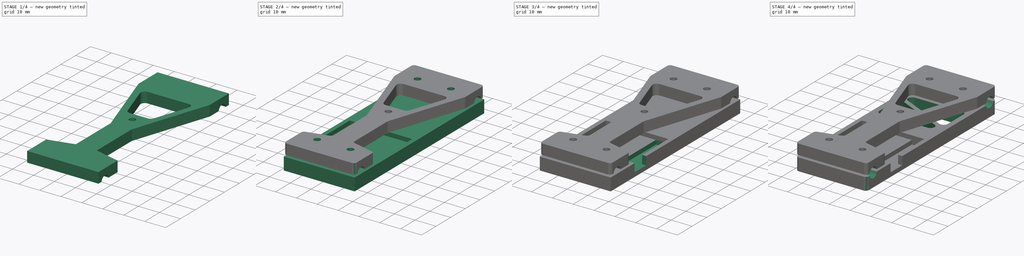
[diagram: build sequence overview — one tinted view per stage of 4, left to right]
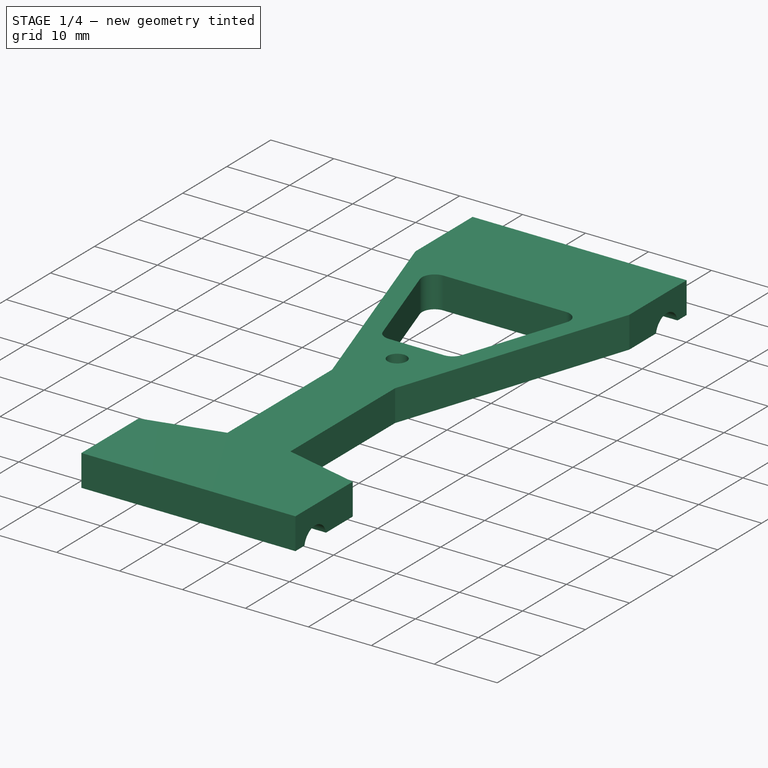
[diagram: stage 1 of 4 — iso view after this stage's code; geometry added in this stage tinted green]
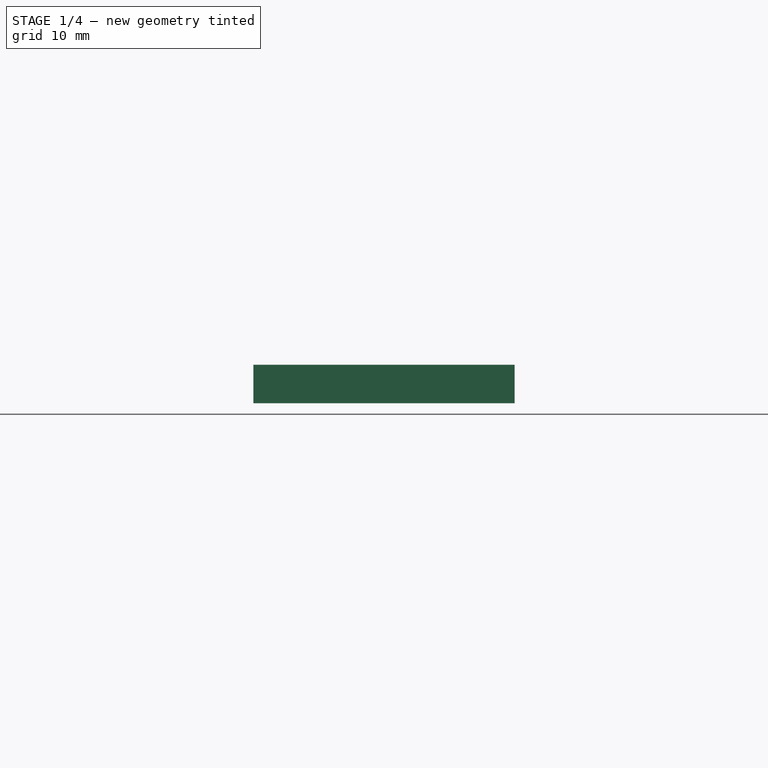
[diagram: stage 1 of 4 — front view after this stage's code; geometry added in this stage tinted green]
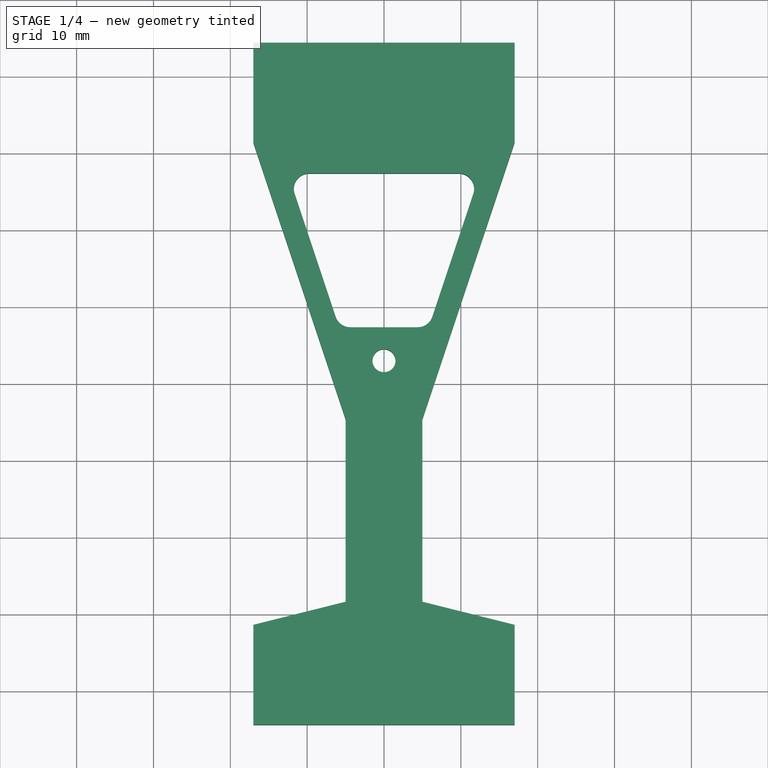
[diagram: stage 1 of 4 — top view after this stage's code; geometry added in this stage tinted green]
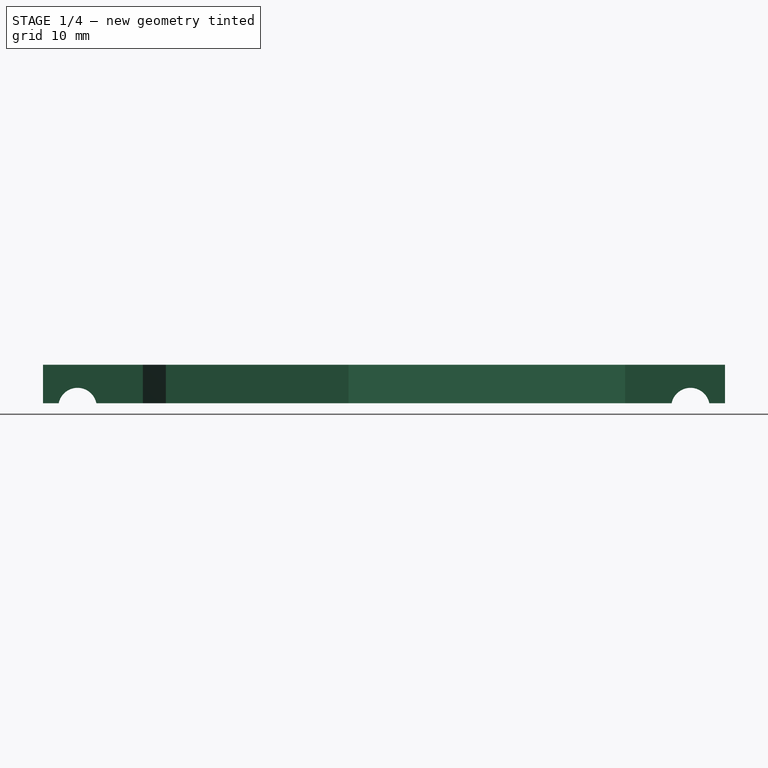
[diagram: stage 1 of 4 — right view after this stage's code; geometry added in this stage tinted green]
FCSTD DOCUMENT  (FreeCAD 0.19R24291 (Git))
Label: rfm95w_mount
License: All rights reserved
LicenseURL: http://en.wikipedia.org/wiki/All_rights_reserved
objects: Sketcher::SketchObject×10, PartDesign::Pocket×7, PartDesign::Plane×4, PartDesign::Pad×2, PartDesign::Fillet×2, PartDesign::Body×2, App::Part×2
note: 38 computed .brp shape members not serialized (recipe doc carries the construction recipe); baked Part::Feature solids carry a one-line shape summary decoded from their .brp

FEATURE [Sketcher::SketchObject] Sketch
  FullyConstrained = true
  MapMode = 5
  Support = -> [XY_Plane001]
  expr: Constraints[14] = 56.4mm * sqrt(2) / 2 + 2.5mm + 2mm
  expr: Constraints[13] = 56.4mm * sqrt(2) / 2 + 2.5mm + 2mm
  sketch-geometry (5):
    g0: LineSegment StartX=17 StartY=44.3808 StartZ=0 EndX=17 EndY=-44.3808 EndZ=0
    g1: LineSegment StartX=17 StartY=-44.3808 StartZ=0 EndX=-17 EndY=-44.3808 EndZ=0
    g2: LineSegment StartX=-17 StartY=44.3808 StartZ=0 EndX=0 EndY=44.3808 EndZ=0
    g3: LineSegment StartX=0 StartY=44.3808 StartZ=0 EndX=17 EndY=44.3808 EndZ=0
    g4: LineSegment StartX=-17 StartY=44.3808 StartZ=0 EndX=-17 EndY=-44.3808 EndZ=0
  constraints (15):
    c: Coincident(g0,g1)
    c: Horizontal(g1)
    c: Vertical(g0)
    c: Coincident(g3,g0)
    c: Horizontal(g3)
    c: Horizontal(g2)
    c: Equal(g2,g3)
    c: Coincident(g4,g2)
    c: Coincident(g4,g1)
    c: Vertical(g4)
    c: DistanceX(g1,g1) = 34
    c: Coincident(g2,g3)
    c: PointOnObject(g2,g-2)
    c: DistanceY(g1,g-1) = 44.3808
    c: DistanceY(g-1,g2) = 44.3808
FEATURE [PartDesign::Pad] Pad
  Direction = (1,1,1)
  Length = 6
  Length2 = 100
  Profile = -> Sketch
  Type = 0
FEATURE [PartDesign::Body] Body
  Group = -> [Sketch,Pad,DatumPlane,Sketch001,Pocket,Sketch002,Pocket001,Sketch003,Pocket002,DatumPlane001,Sketch004,Pocket003,Fillet,Sketch005,Pocket004]
  Origin = -> Origin001
  Tip = -> Pocket004
FEATURE [App::Part] Part  label="base"
  Group = -> [Body]
  Origin = -> Origin
FEATURE [PartDesign::Plane] DatumPlane002
  AttachmentOffset = pos=(0,0,7) rot=(0,0,1;0rad)
  Length = 63.3238
  MapMode = 5
  Placement = pos=(0,0,7) rot=(0,0,1;0rad)
  ResizeMode = 0
  Support = -> [XY_Plane003]
  Width = 102.085
  expr: .AttachmentOffset.Base.z = Pad.Length + 1mm
FEATURE [Sketcher::SketchObject] Sketch006
  FullyConstrained = true
  MapMode = 5
  Placement = pos=(0,0,7) rot=(0,0,1;0rad)
  Support = -> [DatumPlane002]
  expr: Constraints[2] = 56.4mm * sqrt(2) / 2 + 2.5mm + 2mm
  expr: Constraints[1] = 56.4mm * sqrt(2) / 2 + 2.5mm + 2mm
  sketch-geometry (24):
    g0: LineSegment StartX=-17 StartY=44.3808 StartZ=0 EndX=17 EndY=44.3808 EndZ=0
    g1: LineSegment StartX=-17 StartY=-44.3808 StartZ=0 EndX=0 EndY=-44.3808 EndZ=0
    g2: LineSegment StartX=0 StartY=-44.3808 StartZ=0 EndX=17 EndY=-44.3808 EndZ=0
    g3: LineSegment StartX=-5 StartY=-4.62082 StartZ=0 EndX=-5 EndY=-28.3808 EndZ=0
    g4: LineSegment StartX=-5 StartY=-28.3808 StartZ=0 EndX=-17 EndY=-31.3808 EndZ=0
    g5: LineSegment StartX=-17 StartY=-31.3808 StartZ=0 EndX=-17 EndY=-44.3808 EndZ=0
    g6: LineSegment StartX=17 StartY=44.3808 StartZ=0 EndX=17 EndY=31.3808 EndZ=0
    g7: LineSegment StartX=5 StartY=-4.62082 StartZ=0 EndX=5 EndY=-28.3808 EndZ=0
    g8: LineSegment StartX=5 StartY=-28.3808 StartZ=0 EndX=17 EndY=-31.3808 EndZ=0
    g9: LineSegment StartX=17 StartY=-31.3808 StartZ=0 EndX=17 EndY=-44.3808 EndZ=0
    g10: LineSegment StartX=-17 StartY=44.3808 StartZ=0 EndX=-17 EndY=31.3808 EndZ=0
    g11: LineSegment StartX=-17 StartY=31.3808 StartZ=0 EndX=-5 EndY=-4.62082 EndZ=0
    g12: LineSegment StartX=5 StartY=-4.62082 StartZ=0 EndX=17 EndY=31.3808 EndZ=0
    g13: Circle CenterX=0 CenterY=3 CenterZ=0 NormalX=0 NormalY=0 NormalZ=1 AngleXU=0 Radius=1.5
    g14: LineSegment StartX=-9.72965 StartY=27.3808 StartZ=0 EndX=9.72965 EndY=27.3808 EndZ=0
    g15: LineSegment StartX=-11.627 StartY=24.7484 StartZ=0 EndX=-6.28366 EndY=8.71757 EndZ=0
    g16: LineSegment StartX=6.28366 StartY=8.71757 StartZ=0 EndX=11.627 EndY=24.7484 EndZ=0
    g17: LineSegment StartX=-4.38629 StartY=7.35 StartZ=0 EndX=4.38629 EndY=7.35 EndZ=0
    g18: ArcOfCircle CenterX=-4.38629 CenterY=9.35 CenterZ=0 NormalX=0 NormalY=0 NormalZ=1 AngleXU=0 Radius=2 StartAngle=3.46333 EndAngle=4.71239
    g19: ArcOfCircle CenterX=4.38629 CenterY=9.35 CenterZ=0 NormalX=0 NormalY=0 NormalZ=1 AngleXU=0 Radius=2 StartAngle=4.71239 EndAngle=5.96145
    g20: ArcOfCircle CenterX=-9.72965 CenterY=25.3808 CenterZ=0 NormalX=0 NormalY=0 NormalZ=1 AngleXU=0 Radius=2 StartAngle=1.5708 EndAngle=3.46333
    g21: ArcOfCircle CenterX=9.72965 CenterY=25.3808 CenterZ=0 NormalX=0 NormalY=0 NormalZ=1 AngleXU=0 Radius=2 StartAngle=5.96145 EndAngle=7.85398
    g22: LineSegment StartX=-11.627 StartY=24.7484 StartZ=0 EndX=-14.4731 EndY=23.7997 EndZ=0
    g23: LineSegment StartX=11.627 StartY=24.7484 StartZ=0 EndX=14.4731 EndY=23.7997 EndZ=0
  constraints (68):
    c: Horizontal(g0)
    c: DistanceY(g-1,g0) = 44.3808
    c: DistanceY(g1,g-1) = 44.3808
    c: DistanceX(g0,g0) = 34
    c: PointOnObject(g1,g-2)
    c: Horizontal(g1)
    c: Coincident(g2,g1)
    c: Horizontal(g2)
    c: Equal(g2,g1)
    c: Vertical(g2,g0)
    c: Vertical(g0,g1)
    c: Vertical(g3)
    c: Coincident(g4,g3)
    c: Coincident(g5,g4)
    c: Coincident(g5,g1)
    c: Vertical(g5)
    c: Coincident(g6,g0)
    c: Vertical(g6)
    c: Vertical(g7)
    c: Coincident(g8,g7)
    c: Coincident(g9,g8)
    c: Coincident(g9,g2)
    c: Vertical(g9)
    c: Horizontal(g7,g3)
    c: Equal(g4,g8)
    c: Horizontal(g3,g7)
    c: DistanceX(g3,g7) = 10
    c: DistanceY(g8,g7) = 26.76
    c: Equal(g6,g9)
    c: Coincident(g10,g0)
    c: Vertical(g10)
    c: Horizontal(g10,g6)
    c: Coincident(g11,g10)
    c: Coincident(g11,g3)
    c: Coincident(g12,g7)
    c: Coincident(g12,g6)
    c: PointOnObject(g13,g-2)
    c: Radius(g13) = 1.5
    c: DistanceY(g-1,g13) = 3
    c: DistanceY(g2,g7) = 16
    c: Horizontal(g4,g8)
    c: DistanceY(g2,g8) = 13
    c: Horizontal(g14)
    c: Horizontal(g17)
    c: Equal(g20,g21)
    c: Equal(g21,g19)
    c: Equal(g19,g18)
    c: Tangent(g20,g14) = 1.5708
    c: Tangent(g20,g15) = -1.5708
    c: Tangent(g21,g14) = 1.5708
    c: Tangent(g21,g16) = -1.5708
    c: Tangent(g18,g15) = -1.5708
    c: Tangent(g19,g16) = -1.5708
    c: Tangent(g18,g17) = -1.5708
    c: Tangent(g19,g17) = -1.5708
    c: Radius(g20) = 2
    c: DistanceY(g13,g17) = 4.35
    c: DistanceY(g14,g0) = 17
    c: Parallel(g15,g11)
    c: Parallel(g16,g12)
    c: Coincident(g22,g15)
    c: PointOnObject(g22,g11)
    c: Coincident(g23,g16)
    c: PointOnObject(g23,g12)
    c: Perpendicular(g16,g23)
    c: Perpendicular(g11,g22)
    c: Equal(g22,g23)
    c: Distance(g22) = 3
FEATURE [PartDesign::Pad] Pad001
  Direction = (1,1,1)
  Length = 5
  Length2 = 100
  Placement = pos=(0,0,7) rot=(0,0,1;0rad)
  Profile = -> Sketch006
  Type = 0
FEATURE [PartDesign::Plane] DatumPlane003
  Length = 102.085
  MapMode = 5
  Placement = pos=(0,0,0) rot=(0.57735,0.57735,0.57735;2.0944rad)
  ResizeMode = 0
  Support = -> [YZ_Plane003]
  Width = 63.3238
FEATURE [Sketcher::SketchObject] Sketch007
  FullyConstrained = true
  MapMode = 5
  Placement = pos=(0,0,0) rot=(0.57735,0.57735,0.57735;2.0944rad)
  Support = -> [DatumPlane003]
  expr: Constraints[2] = Pad.Length + 0.5mm
  expr: Constraints[1] = 56.4mm * sqrt(2) / 2
  sketch-geometry (4):
    g0: Circle CenterX=-39.8808 CenterY=6.5 CenterZ=0 NormalX=0 NormalY=0 NormalZ=1 AngleXU=0 Radius=2.5
    g1: Circle CenterX=39.8808 CenterY=6.5 CenterZ=0 NormalX=0 NormalY=0 NormalZ=1 AngleXU=0 Radius=2.5
    g2: LineSegment StartX=-39.8808 StartY=6.5 StartZ=0 EndX=0 EndY=6.5 EndZ=0
    g3: LineSegment StartX=0 StartY=6.5 StartZ=0 EndX=39.8808 EndY=6.5 EndZ=0
  constraints (11):
    c: Radius(g0) = 2.5
    c: DistanceX(g0,g-1) = 39.8808
    c: DistanceY(g-1,g0) = 6.5
    c: Equal(g1,g0)
    c: Coincident(g2,g0)
    c: PointOnObject(g2,g-2)
    c: Horizontal(g2)
    c: Coincident(g3,g2)
    c: Coincident(g3,g1)
    c: Horizontal(g3)
    c: Equal(g3,g2)
FEATURE [PartDesign::Pocket] Pocket005
  BaseFeature = -> Pad001
  Length = 5
  Length2 = 100
  Midplane = true
  Placement = pos=(0,0,7) rot=(0,0,1;0rad)
  Profile = -> Sketch007
  Type = 1
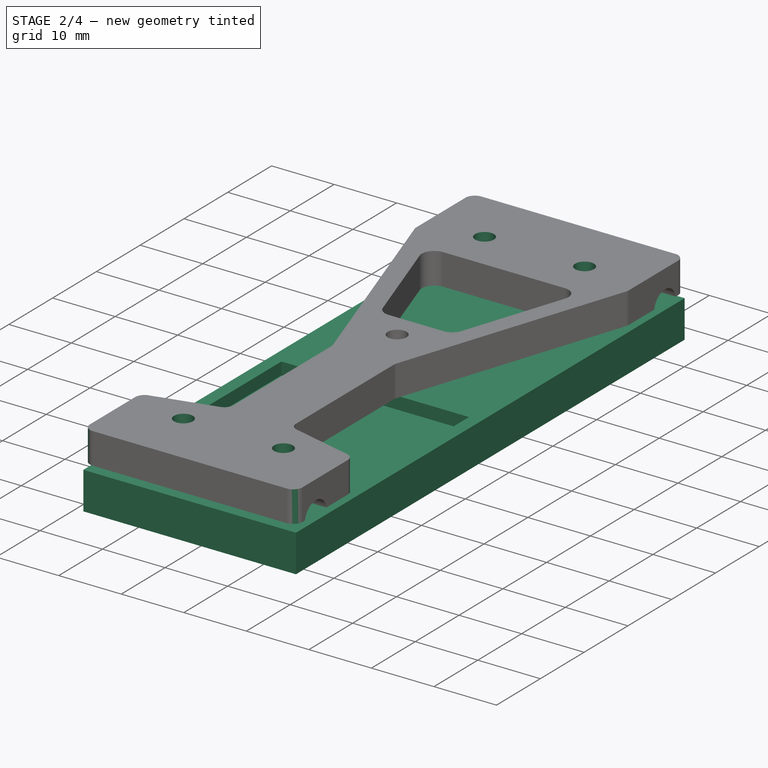
[diagram: stage 2 of 4 — iso view after this stage's code; geometry added in this stage tinted green]
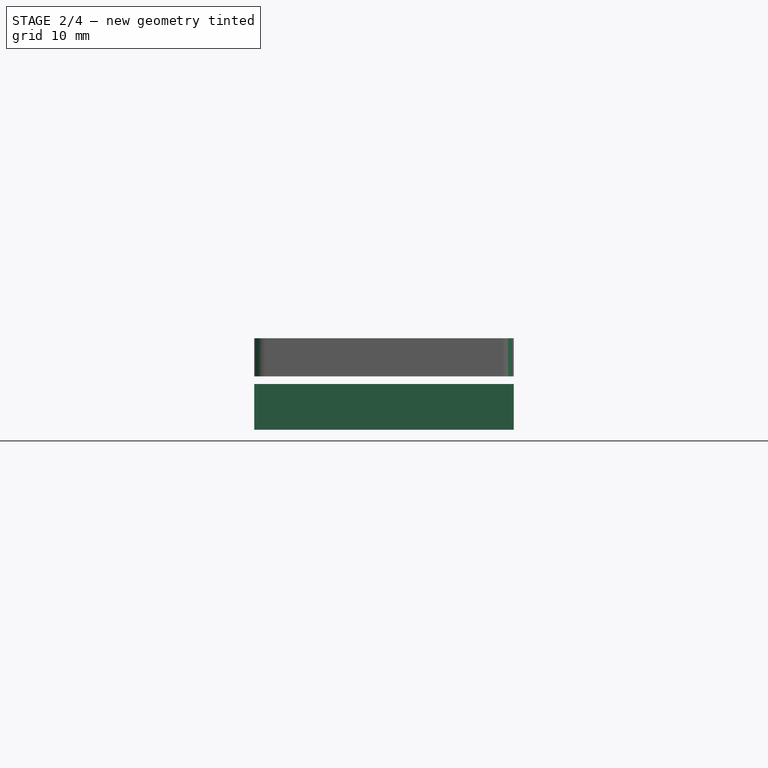
[diagram: stage 2 of 4 — front view after this stage's code; geometry added in this stage tinted green]
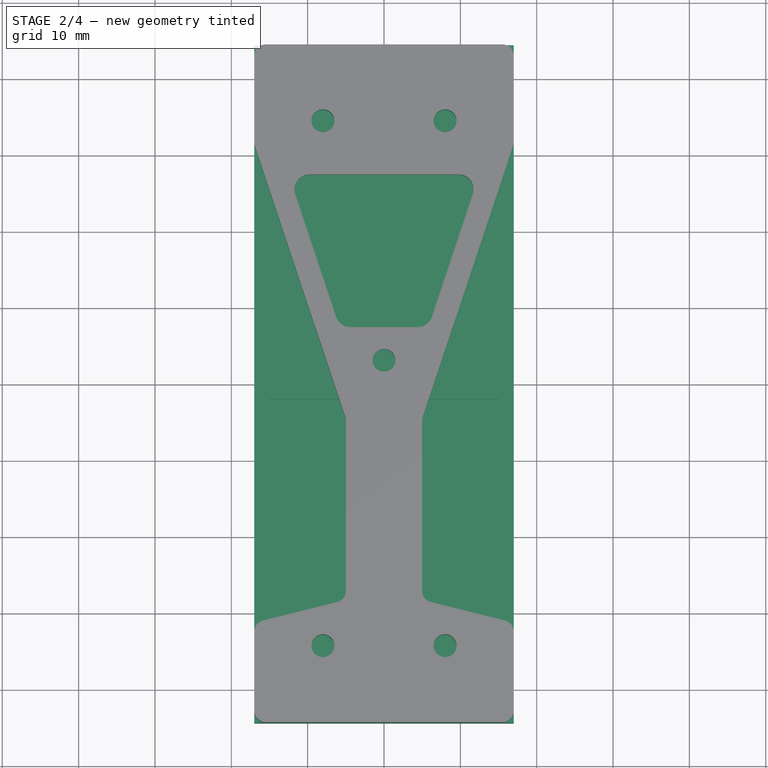
[diagram: stage 2 of 4 — top view after this stage's code; geometry added in this stage tinted green]
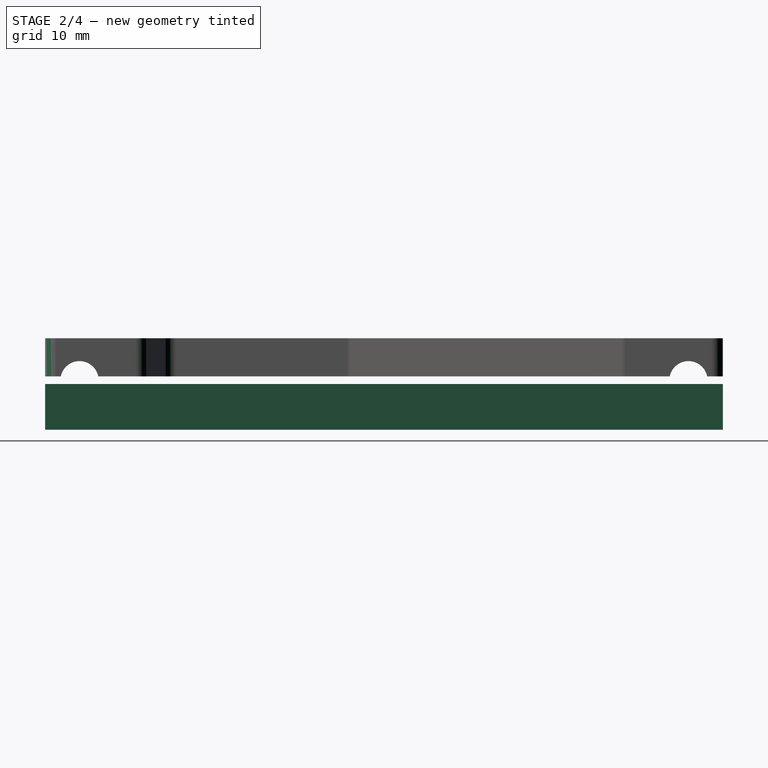
[diagram: stage 2 of 4 — right view after this stage's code; geometry added in this stage tinted green]
FEATURE [PartDesign::Plane] DatumPlane
  AttachmentOffset = pos=(0,0,6) rot=(0,0,1;0rad)
  Length = 63.3238
  MapMode = 5
  Placement = pos=(0,0,6) rot=(0,0,1;0rad)
  ResizeMode = 0
  Support = -> [XY_Plane001]
  Width = 102.085
  expr: .AttachmentOffset.Base.z = Pad.Length
FEATURE [Sketcher::SketchObject] Sketch001
  FullyConstrained = true
  MapMode = 5
  Placement = pos=(0,0,6) rot=(0,0,1;0rad)
  Support = -> [DatumPlane]
  sketch-geometry (5):
    g0: LineSegment StartX=15 StartY=-2 StartZ=0 EndX=15 EndY=-28 EndZ=0
    g1: LineSegment StartX=15 StartY=-28 StartZ=0 EndX=-15 EndY=-28 EndZ=0
    g2: LineSegment StartX=-15 StartY=-28 StartZ=0 EndX=-15 EndY=-2 EndZ=0
    g3: LineSegment StartX=-15 StartY=-2 StartZ=0 EndX=0 EndY=-2 EndZ=0
    g4: LineSegment StartX=0 StartY=-2 StartZ=0 EndX=15 EndY=-2 EndZ=0
  constraints (15):
    c: Coincident(g0,g1)
    c: Coincident(g1,g2)
    c: Horizontal(g1)
    c: Vertical(g0)
    c: Vertical(g2)
    c: Coincident(g3,g2)
    c: PointOnObject(g3,g-2)
    c: Horizontal(g3)
    c: Coincident(g4,g3)
    c: Coincident(g4,g0)
    c: Horizontal(g4)
    c: Equal(g4,g3)
    c: DistanceX(g1,g1) = 30
    c: DistanceY(g2,g2) = 26
    c: DistanceY(g2,g-1) = 2
FEATURE [PartDesign::Pocket] Pocket
  BaseFeature = -> Pad
  Length = 2
  Length2 = 100
  Profile = -> Sketch001
  Type = 0
FEATURE [Sketcher::SketchObject] Sketch008
  FullyConstrained = true
  MapMode = 5
  Placement = pos=(0,0,0) rot=(0.57735,0.57735,0.57735;2.0944rad)
  Support = -> [DatumPlane003]
FEATURE [Sketcher::SketchObject] Sketch009
  ExternalGeometry = -> [Pad001]
  FullyConstrained = true
  MapMode = 5
  Placement = pos=(0,0,7) rot=(0,0,1;0rad)
  Support = -> [DatumPlane002]
  sketch-geometry (6):
    g0: Circle CenterX=-8 CenterY=34.3808 CenterZ=0 NormalX=0 NormalY=0 NormalZ=1 AngleXU=0 Radius=1.5
    g1: Circle CenterX=8 CenterY=34.3808 CenterZ=0 NormalX=0 NormalY=0 NormalZ=1 AngleXU=0 Radius=1.5
    g2: Circle CenterX=-8 CenterY=-34.3808 CenterZ=0 NormalX=0 NormalY=0 NormalZ=1 AngleXU=0 Radius=1.5
    g3: Circle CenterX=8 CenterY=-34.3808 CenterZ=0 NormalX=0 NormalY=0 NormalZ=1 AngleXU=0 Radius=1.5
    g4: LineSegment StartX=-8 StartY=34.3808 StartZ=0 EndX=0 EndY=34.3808 EndZ=0
    g5: LineSegment StartX=0 StartY=34.3808 StartZ=0 EndX=8 EndY=34.3808 EndZ=0
  constraints (17):
    c: Equal(g3,g2)
    c: Equal(g2,g0)
    c: Equal(g0,g1)
    c: Coincident(g4,g0)
    c: PointOnObject(g4,g-2)
    c: Horizontal(g4)
    c: Coincident(g5,g4)
    c: Coincident(g5,g1)
    c: Horizontal(g5)
    c: Equal(g5,g4)
    c: DistanceX(g0,g1) = 16
    c: DistanceY(g4,g-3) = 10
    c: Vertical(g2,g0)
    c: Vertical(g1,g3)
    c: Horizontal(g2,g3)
    c: DistanceY(g-4,g3) = 10
    c: Radius(g1) = 1.5
FEATURE [PartDesign::Pocket] Pocket006
  BaseFeature = -> Pocket005
  Length = 5
  Length2 = 100
  Midplane = true
  Placement = pos=(0,0,7) rot=(0,0,1;0rad)
  Profile = -> Sketch009
  Type = 1
FEATURE [PartDesign::Fillet] Fillet001
  Base = -> Pocket006 [Edge64,Edge66,Edge70,Edge62,Edge74,Edge61,Edge6,Edge4,Edge35,Edge63,Edge65,Edge69]
  BaseFeature = -> Pocket006
  Placement = pos=(0,0,7) rot=(0,0,1;0rad)
  Radius = 1.5
  SupportTransform = false
FEATURE [PartDesign::Body] Body001
  Group = -> [DatumPlane002,Sketch006,Pad001,DatumPlane003,Sketch007,Pocket005,Sketch008,Sketch009,Pocket006,Fillet001]
  Origin = -> Origin003
  Tip = -> Fillet001
FEATURE [App::Part] Part001  label="top"
  Group = -> [Body001]
  Origin = -> Origin002
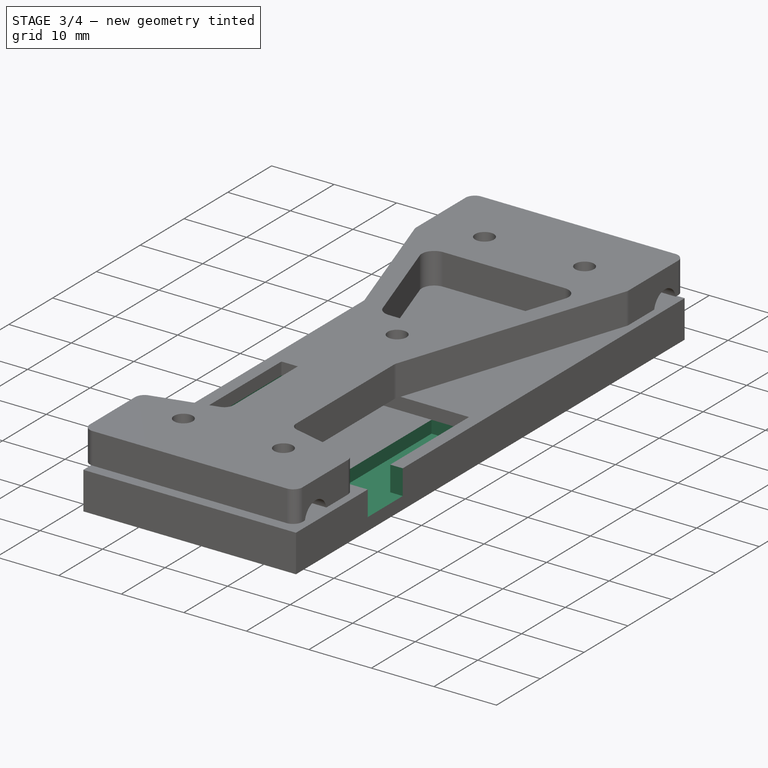
[diagram: stage 3 of 4 — iso view after this stage's code; geometry added in this stage tinted green]
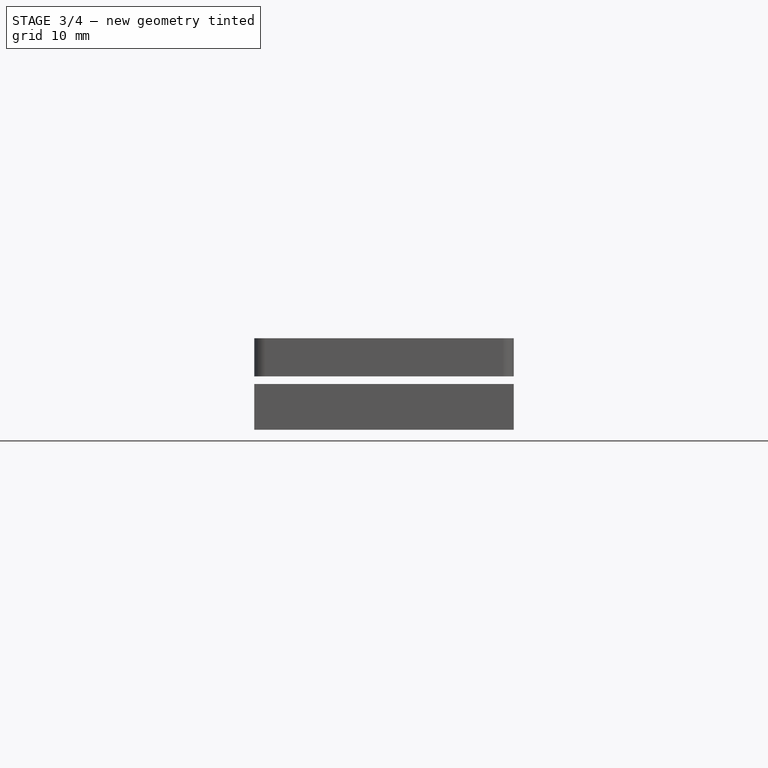
[diagram: stage 3 of 4 — front view after this stage's code; geometry added in this stage tinted green]
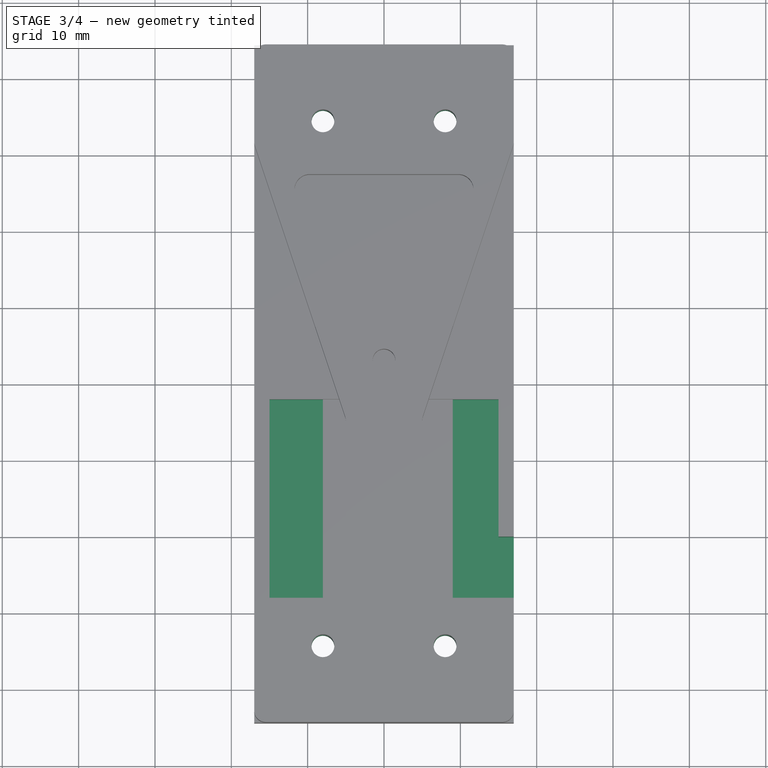
[diagram: stage 3 of 4 — top view after this stage's code; geometry added in this stage tinted green]
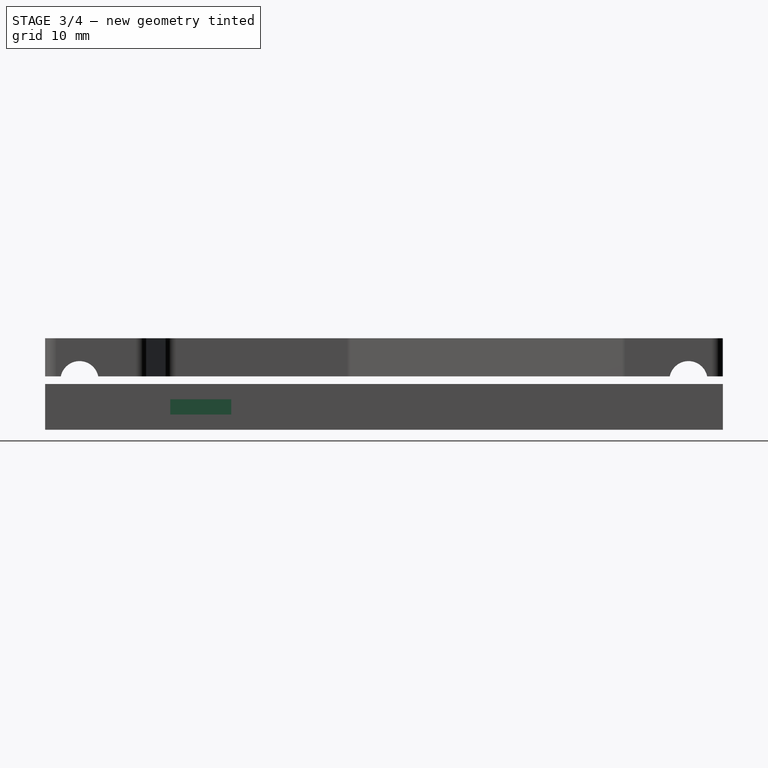
[diagram: stage 3 of 4 — right view after this stage's code; geometry added in this stage tinted green]
FEATURE [Sketcher::SketchObject] Sketch002
  ExternalGeometry = -> [Pocket]
  FullyConstrained = true
  MapMode = 5
  Placement = pos=(0,0,6) rot=(0,0,1;0rad)
  Support = -> [DatumPlane]
  sketch-geometry (10):
    g0: LineSegment StartX=-15 StartY=-2 StartZ=0 EndX=-8 EndY=-2 EndZ=0
    g1: LineSegment StartX=-8 StartY=-2 StartZ=0 EndX=-8 EndY=-28 EndZ=0
    g2: LineSegment StartX=-8 StartY=-28 StartZ=0 EndX=-15 EndY=-28 EndZ=0
    g3: LineSegment StartX=-15 StartY=-28 StartZ=0 EndX=-15 EndY=-2 EndZ=0
    g4: LineSegment StartX=15 StartY=-2 StartZ=0 EndX=9 EndY=-2 EndZ=0
    g5: LineSegment StartX=9 StartY=-2 StartZ=0 EndX=9 EndY=-28 EndZ=0
    g6: LineSegment StartX=9 StartY=-28 StartZ=0 EndX=17 EndY=-28 EndZ=0
    g7: LineSegment StartX=17 StartY=-28 StartZ=0 EndX=17 EndY=-20 EndZ=0
    g8: LineSegment StartX=17 StartY=-20 StartZ=0 EndX=15 EndY=-20 EndZ=0
    g9: LineSegment StartX=15 StartY=-20 StartZ=0 EndX=15 EndY=-2 EndZ=0
  constraints (27):
    c: Coincident(g0,g1)
    c: Coincident(g1,g2)
    c: Coincident(g2,g3)
    c: Coincident(g3,g0)
    c: Horizontal(g0)
    c: Horizontal(g2)
    c: Vertical(g1)
    c: Coincident(g0,g-5)
    c: Coincident(g2,g-7)
    c: DistanceX(g0,g0) = 7
    c: Coincident(g4,g-6)
    c: PointOnObject(g4,g-4)
    c: Coincident(g5,g4)
    c: PointOnObject(g5,g-7)
    c: Vertical(g5)
    c: Coincident(g6,g5)
    c: Horizontal(g6)
    c: Coincident(g7,g6)
    c: Vertical(g7)
    c: Coincident(g8,g7)
    c: PointOnObject(g8,g-6)
    c: Horizontal(g8)
    c: Coincident(g9,g8)
    c: Coincident(g9,g4)
    c: DistanceX(g4,g4) = 6
    c: DistanceY(g7,g7) = 8
    c: PointOnObject(g7,g-8)
FEATURE [PartDesign::Pocket] Pocket001
  BaseFeature = -> Pocket
  Length = 4
  Length2 = 100
  Profile = -> Sketch002
  Type = 0
FEATURE [Sketcher::SketchObject] Sketch003
  ExternalGeometry = -> [Pocket001]
  FullyConstrained = true
  MapMode = 5
  Placement = pos=(0,0,6) rot=(0,0,1;0rad)
  Support = -> [DatumPlane]
  sketch-geometry (8):
    g0: Circle CenterX=-8 CenterY=34.3808 CenterZ=0 NormalX=0 NormalY=0 NormalZ=1 AngleXU=0 Radius=1.5
    g1: Circle CenterX=8 CenterY=34.3808 CenterZ=0 NormalX=0 NormalY=0 NormalZ=1 AngleXU=0 Radius=1.5
    g2: LineSegment StartX=-8 StartY=34.3808 StartZ=0 EndX=0 EndY=34.3808 EndZ=0
    g3: LineSegment StartX=0 StartY=34.3808 StartZ=0 EndX=8 EndY=34.3808 EndZ=0
    g4: Circle CenterX=-8 CenterY=-34.3808 CenterZ=0 NormalX=0 NormalY=0 NormalZ=1 AngleXU=0 Radius=1.5
    g5: Circle CenterX=8 CenterY=-34.3808 CenterZ=0 NormalX=0 NormalY=0 NormalZ=1 AngleXU=0 Radius=1.5
    g6: LineSegment StartX=-8 StartY=-34.3808 StartZ=0 EndX=0 EndY=-34.3808 EndZ=0
    g7: LineSegment StartX=0 StartY=-34.3808 StartZ=0 EndX=8 EndY=-34.3808 EndZ=0
  constraints (22):
    c: Equal(g0,g1)
    c: Coincident(g2,g0)
    c: PointOnObject(g2,g-2)
    c: Horizontal(g2)
    c: Coincident(g3,g2)
    c: Coincident(g3,g1)
    c: Horizontal(g3)
    c: Equal(g2,g3)
    c: Radius(g0) = 1.5
    c: DistanceX(g0,g1) = 16
    c: DistanceY(g2,g-4) = 10
    c: Coincident(g6,g4)
    c: PointOnObject(g6,g-2)
    c: Coincident(g7,g6)
    c: Coincident(g7,g5)
    c: Horizontal(g7)
    c: Horizontal(g6)
    c: Vertical(g4,g0)
    c: Vertical(g5,g1)
    c: Equal(g5,g4)
    c: Equal(g4,g0)
    c: DistanceY(g-5,g6) = 10
FEATURE [PartDesign::Pocket] Pocket002
  BaseFeature = -> Pocket001
  Length = 5
  Length2 = 100
  Profile = -> Sketch003
  Type = 1
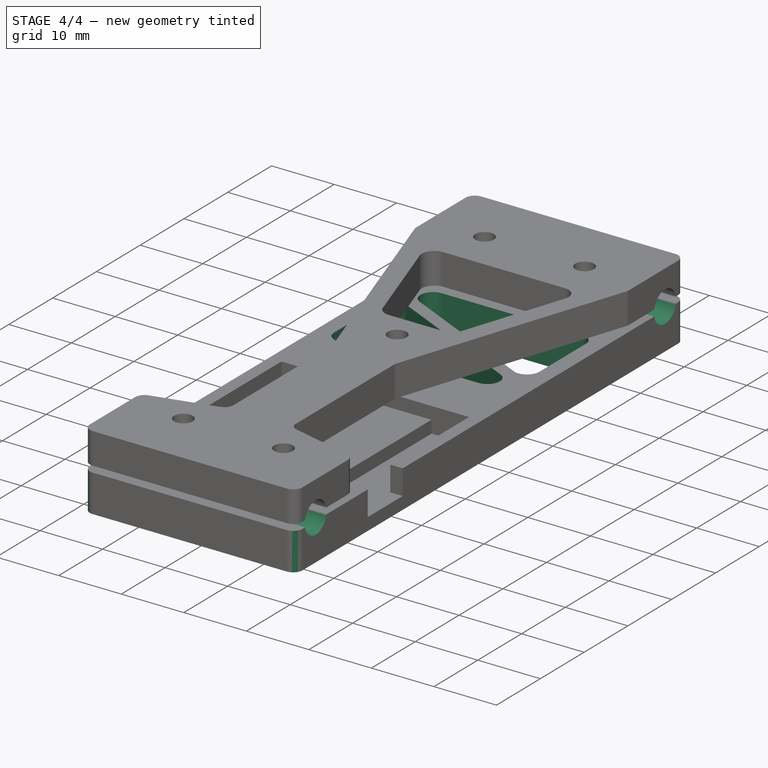
[diagram: stage 4 of 4 — iso view after this stage's code; geometry added in this stage tinted green]
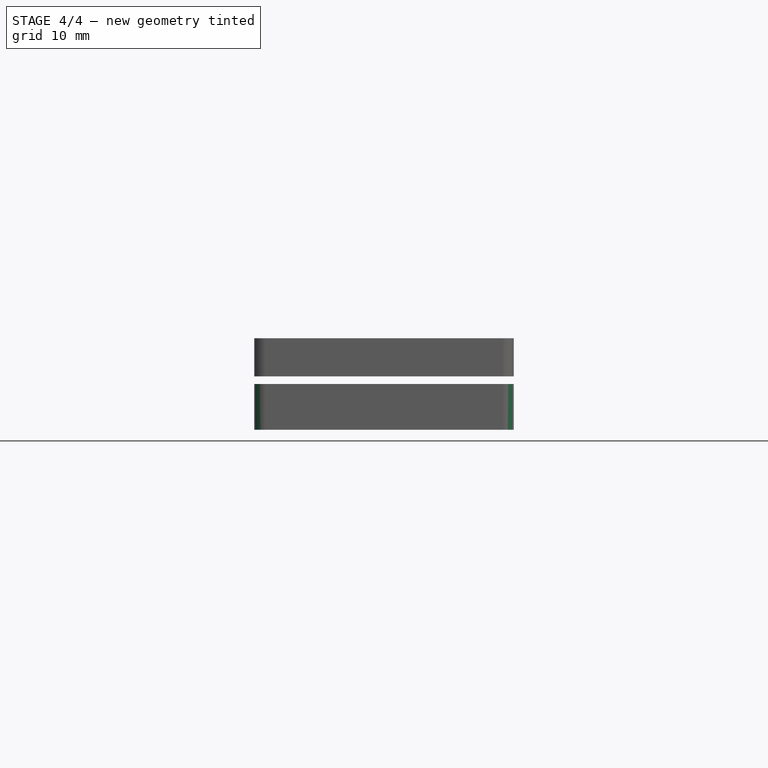
[diagram: stage 4 of 4 — front view after this stage's code; geometry added in this stage tinted green]
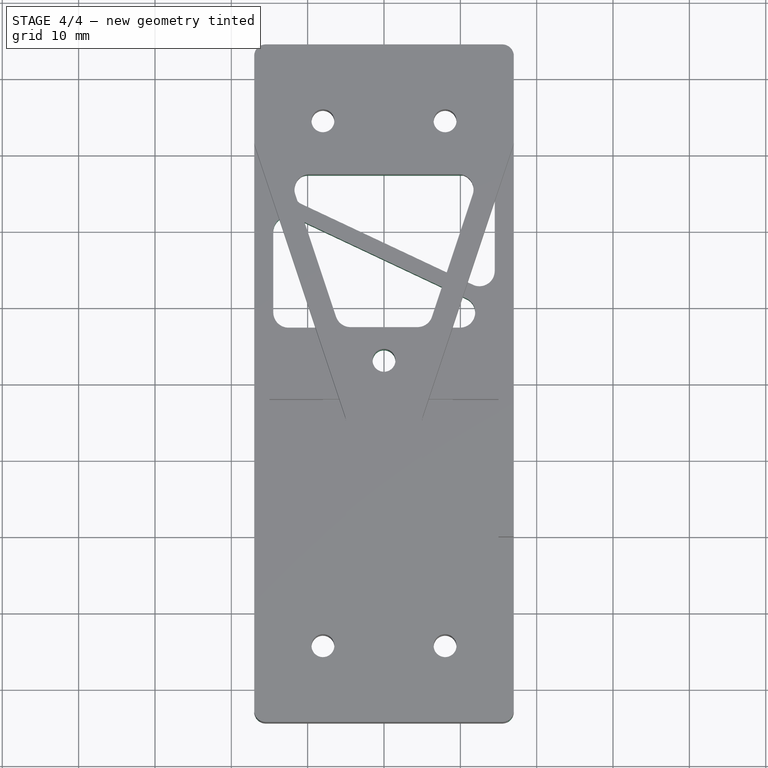
[diagram: stage 4 of 4 — top view after this stage's code; geometry added in this stage tinted green]
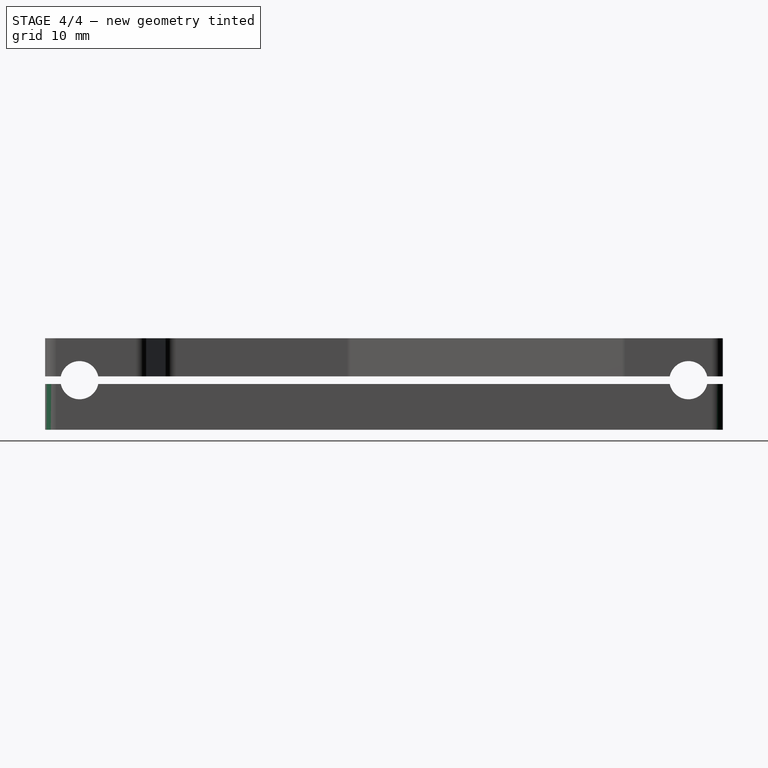
[diagram: stage 4 of 4 — right view after this stage's code; geometry added in this stage tinted green]
FEATURE [PartDesign::Plane] DatumPlane001
  Length = 102.085
  MapMode = 5
  Placement = pos=(0,0,0) rot=(0.57735,0.57735,0.57735;2.0944rad)
  ResizeMode = 0
  Support = -> [YZ_Plane001]
  Width = 63.3238
FEATURE [Sketcher::SketchObject] Sketch004
  FullyConstrained = true
  MapMode = 5
  Placement = pos=(0,0,0) rot=(0.57735,0.57735,0.57735;2.0944rad)
  Support = -> [DatumPlane001]
  expr: Constraints[2] = 56.4mm * sqrt(2) / 2
  expr: Constraints[1] = Pad.Length + 0.5mm
  sketch-geometry (4):
    g0: Circle CenterX=-39.8808 CenterY=6.5 CenterZ=0 NormalX=0 NormalY=0 NormalZ=1 AngleXU=0 Radius=2.5
    g1: Circle CenterX=39.8808 CenterY=6.5 CenterZ=0 NormalX=0 NormalY=0 NormalZ=1 AngleXU=0 Radius=2.5
    g2: LineSegment StartX=-39.8808 StartY=6.5 StartZ=0 EndX=0 EndY=6.5 EndZ=0
    g3: LineSegment StartX=0 StartY=6.5 StartZ=0 EndX=39.8808 EndY=6.5 EndZ=0
  constraints (11):
    c: Radius(g0) = 2.5
    c: DistanceY(g0) = 6.5
    c: DistanceX(g0,g-1) = 39.8808
    c: Equal(g0,g1) = 2.5
    c: Horizontal(g1,g0)
    c: Coincident(g2,g0)
    c: PointOnObject(g2,g-2)
    c: Horizontal(g2)
    c: Coincident(g3,g2)
    c: Coincident(g3,g1)
    c: Equal(g3,g2)
FEATURE [PartDesign::Pocket] Pocket003
  BaseFeature = -> Pocket002
  Length = 5
  Length2 = 100
  Midplane = true
  Profile = -> Sketch004
  Type = 1
FEATURE [PartDesign::Fillet] Fillet
  Base = -> Pocket003 [Edge23,Edge6,Edge12,Edge1]
  BaseFeature = -> Pocket003
  Radius = 1.5
  SupportTransform = false
FEATURE [Sketcher::SketchObject] Sketch005
  ExternalGeometry = -> [Fillet]
  FullyConstrained = true
  MapMode = 5
  Placement = pos=(0,0,6) rot=(0,0,1;0rad)
  Support = -> [DatumPlane]
  sketch-geometry (17):
    g0: LineSegment StartX=-9.94312 StartY=27.3808 StartZ=0 EndX=12.5 EndY=27.3808 EndZ=0
    g1: LineSegment StartX=14.5 StartY=25.3808 StartZ=0 EndX=14.5 EndY=14.8087 EndZ=0
    g2: LineSegment StartX=-10.7954 StartY=23.5715 StartZ=0 EndX=11.6477 EndY=12.9994 EndZ=0
    g3: LineSegment StartX=-11.6477 StartY=21.7622 StartZ=0 EndX=10.7954 EndY=11.1901 EndZ=0
    g4: LineSegment StartX=9.94312 StartY=7.38082 StartZ=0 EndX=-12.5 EndY=7.38082 EndZ=0
    g5: LineSegment StartX=-14.5 StartY=19.9529 StartZ=0 EndX=-14.5 EndY=9.38082 EndZ=0
    g6: ArcOfCircle CenterX=-9.94312 CenterY=25.3808 CenterZ=0 NormalX=0 NormalY=0 NormalZ=1 AngleXU=0 Radius=2 StartAngle=1.5708 EndAngle=4.27216
    g7: ArcOfCircle CenterX=12.5 CenterY=14.8087 CenterZ=0 NormalX=0 NormalY=0 NormalZ=1 AngleXU=0 Radius=2 StartAngle=4.27216 EndAngle=6.28319
    g8: ArcOfCircle CenterX=12.5 CenterY=25.3808 CenterZ=0 NormalX=0 NormalY=0 NormalZ=1 AngleXU=0 Radius=2 StartAngle=6e-16 EndAngle=1.5708
    g9: ArcOfCircle CenterX=-12.5 CenterY=19.9529 CenterZ=0 NormalX=0 NormalY=0 NormalZ=1 AngleXU=0 Radius=2 StartAngle=1.13057 EndAngle=3.14159
    g10: ArcOfCircle CenterX=9.94312 CenterY=9.38082 CenterZ=0 NormalX=0 NormalY=0 NormalZ=1 AngleXU=0 Radius=2 StartAngle=4.71239 EndAngle=7.41375
    g11: ArcOfCircle CenterX=-12.5 CenterY=9.38082 CenterZ=0 NormalX=0 NormalY=0 NormalZ=1 AngleXU=0 Radius=2 StartAngle=3.14159 EndAngle=4.71239
    g12: LineSegment StartX=-11.6477 StartY=21.7622 StartZ=0 EndX=-10.7954 EndY=23.5715 EndZ=0
    g13: LineSegment StartX=11.6477 StartY=12.9994 StartZ=0 EndX=10.7954 EndY=11.1901 EndZ=0
    g14: LineSegment StartX=14.5 StartY=14.8087 StartZ=0 EndX=17 EndY=14.8087 EndZ=0
    g15: LineSegment StartX=-14.5 StartY=9.38082 StartZ=0 EndX=-17 EndY=9.38082 EndZ=0
    g16: Circle CenterX=0 CenterY=3 CenterZ=0 NormalX=0 NormalY=0 NormalZ=1 AngleXU=0 Radius=1.5
  constraints (43):
    c: Horizontal(g0)
    c: Vertical(g1)
    c: Horizontal(g4)
    c: Vertical(g5)
    c: Tangent(g6,g0) = 1.5708
    c: Tangent(g6,g2) = -1.5708
    c: Tangent(g8,g0) = 1.5708
    c: Tangent(g8,g1) = 1.5708
    c: Tangent(g7,g1) = 1.5708
    c: Tangent(g7,g2) = -1.5708
    c: Parallel(g3,g2)
    c: Tangent(g9,g3) = 1.5708
    c: Tangent(g9,g5) = -1.5708
    c: Tangent(g10,g3) = 1.5708
    c: Tangent(g10,g4) = 1.5708
    c: Tangent(g11,g5) = -1.5708
    c: Tangent(g11,g4) = 1.5708
    c: Equal(g9,g6)
    c: Equal(g6,g8)
    c: Equal(g8,g7)
    c: Equal(g7,g10)
    c: Equal(g10,g11)
    c: Radius(g8) = 2
    c: Coincident(g12,g3)
    c: Coincident(g12,g2)
    c: Coincident(g13,g2)
    c: Coincident(g13,g3)
    c: Perpendicular(g13,g2)
    c: Perpendicular(g3,g12)
    c: Coincident(g14,g1)
    c: PointOnObject(g14,g-4)
    c: Horizontal(g14)
    c: Distance(g12) = 2
    c: DistanceY(g4,g0) = 20
    c: DistanceY(g0,g-10) = 17
    c: Coincident(g15,g5)
    c: PointOnObject(g15,g-3)
    c: Horizontal(g15)
    c: Equal(g15,g14)
    c: DistanceX(g14,g14) = 2.5
    c: PointOnObject(g16,g-2)
    c: Radius(g16) = 1.5
    c: DistanceY(g-1,g16) = 3
FEATURE [PartDesign::Pocket] Pocket004
  BaseFeature = -> Fillet
  Length = 5
  Length2 = 100
  Profile = -> Sketch005
  Type = 1
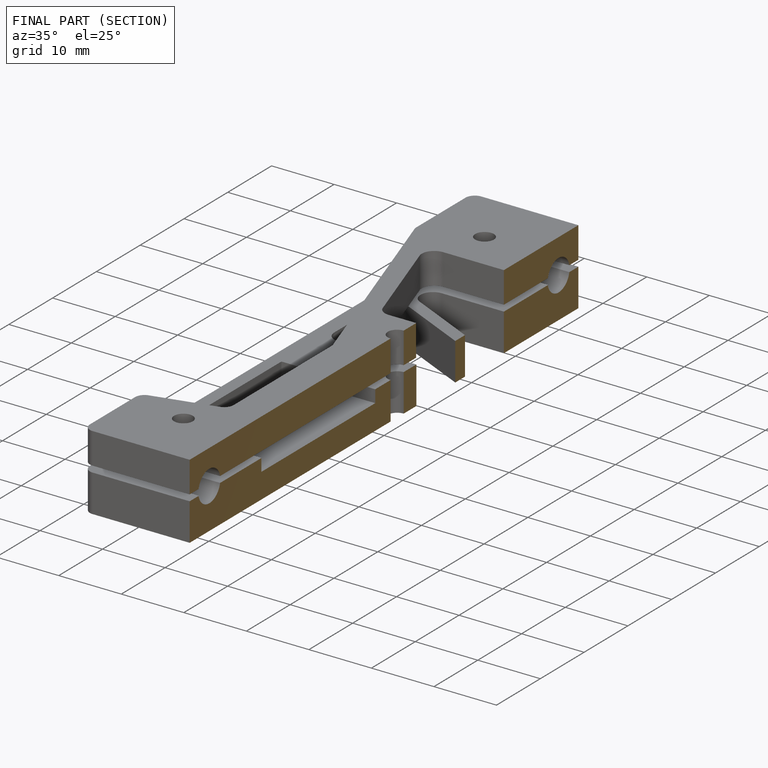
[diagram: finished part — half-section view (interior)]
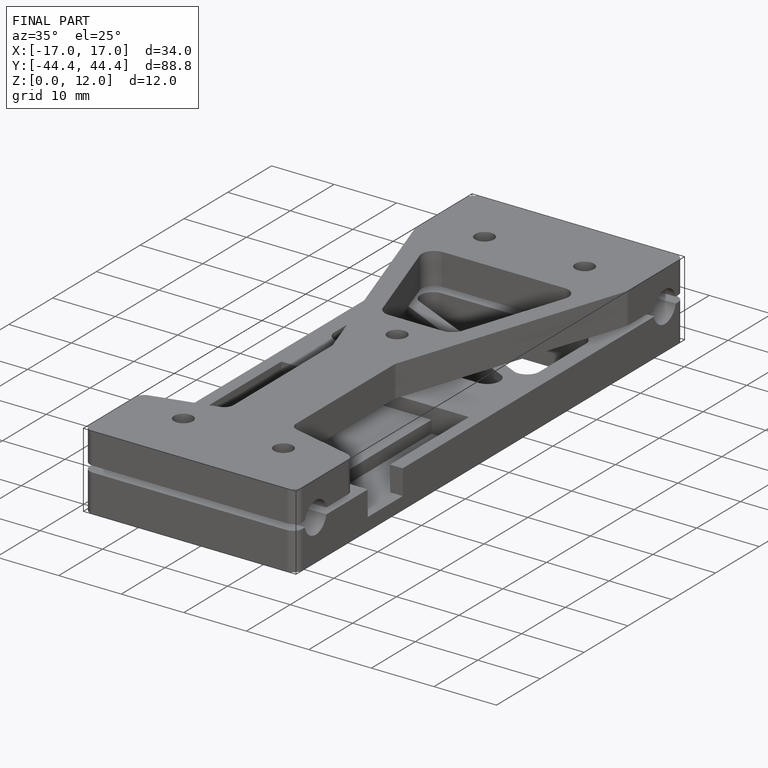
[diagram: finished part — iso view with bounding-box wireframe]
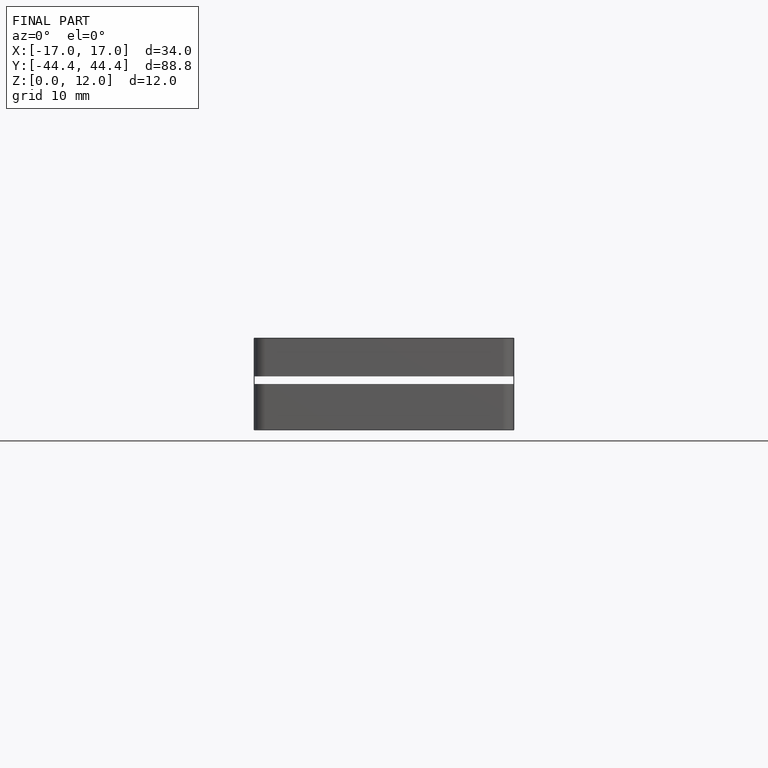
[diagram: finished part — front view with bounding-box wireframe]
